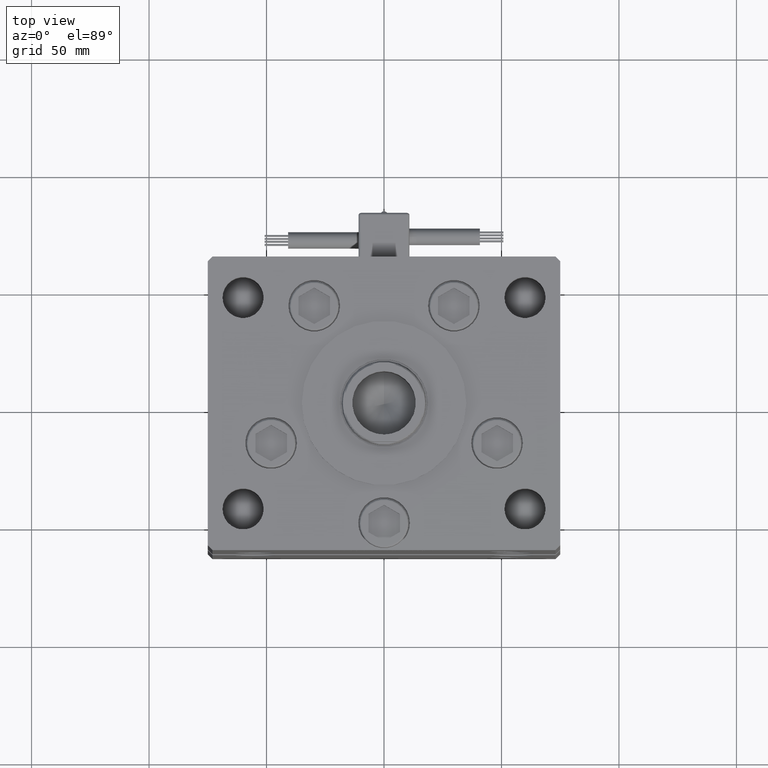
[diagram: clean part render]
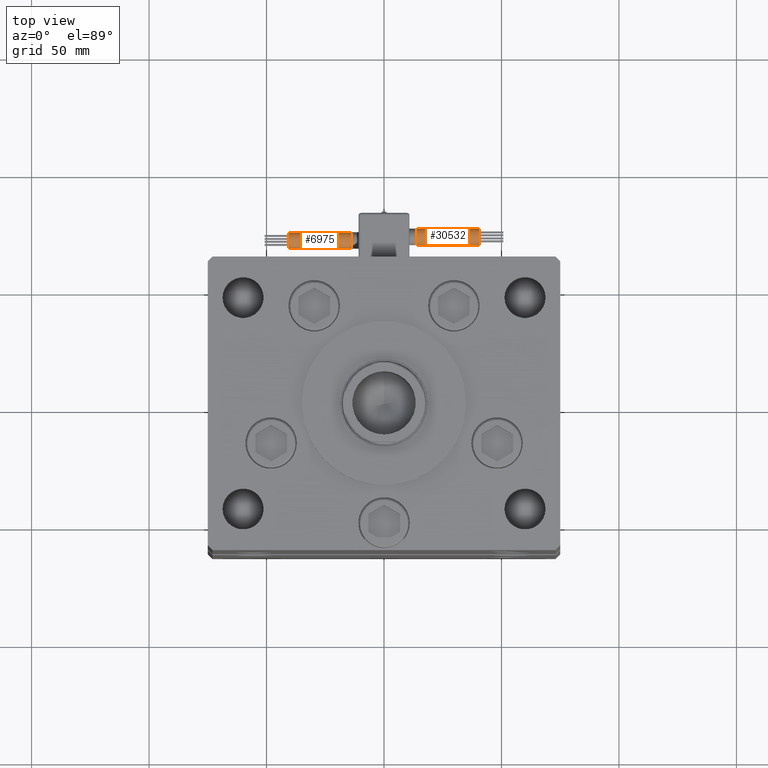
[diagram: same view with one multi-face feature highlighted, each face labeled with its STEP entity id]
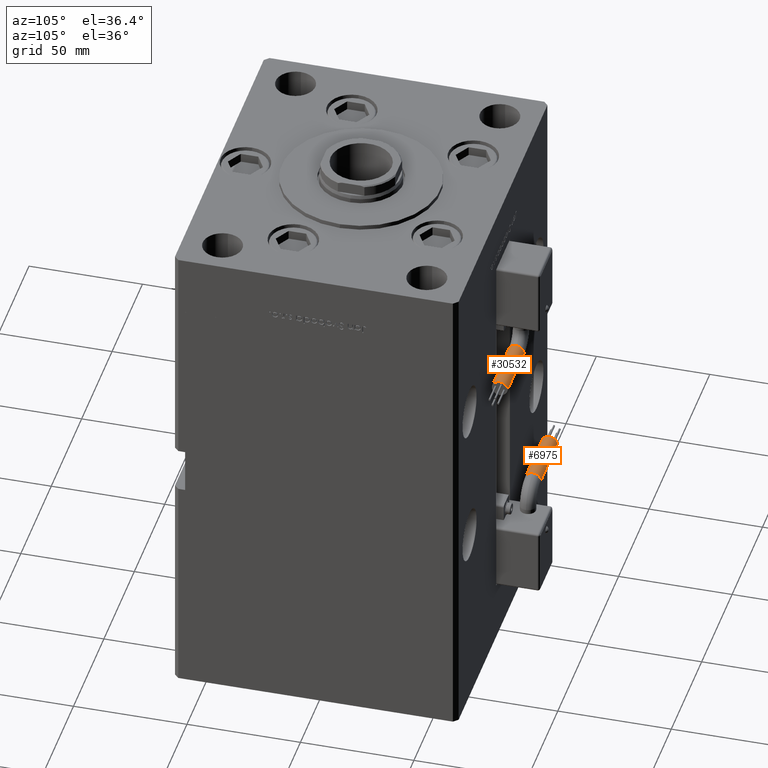
[diagram: same view with one multi-face feature highlighted, each face labeled with its STEP entity id]
A machine part, top view. The highlighted faces form ONE feature: a constant-radius fillet chain: 2 tangent blend faces with common blend radius 3.5 mm. The faces share edges in the B-rep.
A second angle (auxiliary view) of the same feature is appended — it is thin or edge-on in the first view.
Their STEP definitions:
[1] entity #30532 (Cylinder):
#129 = LINE ( 'NONE', #20750, #42789 ) ;
#245 = EDGE_CURVE ( 'NONE', #30172, #48373, #44445, .T. ) ;
#474 = CIRCLE ( 'NONE', #24805, 3.500000000000003109 ) ;
#1185 = CARTESIAN_POINT ( 'NONE',  ( 13.79999999999999893, 42.00000000000000000, -65.00000000000000000 ) ) ;
#1917 = CARTESIAN_POINT ( 'NONE',  ( 40.80000000000000426, 45.50000000000000711, -65.00000000000000000 ) ) ;
#2687 = LINE ( 'NONE', #19066, #33675 ) ;
#2784 = DIRECTION ( 'NONE',  ( 1.000000000000000000, 0.000000000000000000, 2.220446049250000002E-16 ) ) ;
#3662 = AXIS2_PLACEMENT_3D ( 'NONE', #36942, #2784, #54120 ) ;
#4853 = FACE_OUTER_BOUND ( 'NONE', #22538, .T. ) ;
#5139 = DIRECTION ( 'NONE',  ( 1.000000000000000000, -2.599999999999999847E-16, 2.220446049250000002E-16 ) ) ;
#7284 = ORIENTED_EDGE ( 'NONE', *, *, #25529, .T. ) ;
#7340 = VERTEX_POINT ( 'NONE', #1917 ) ;
#7463 = CARTESIAN_POINT ( 'NONE',  ( 13.79999999999999893, 42.00000000000000000, -65.00000000000000000 ) ) ;
#9355 = CYLINDRICAL_SURFACE ( 'NONE', #35809, 3.500000000000003109 ) ;
#9510 = EDGE_CURVE ( 'NONE', #7340, #43830, #25305, .T. ) ;
#17623 = DIRECTION ( 'NONE',  ( 1.000000000000000000, -2.599999999999999847E-16, 2.220446049250000002E-16 ) ) ;
#17783 = EDGE_CURVE ( 'NONE', #32652, #7340, #2687, .T. ) ;
#19066 = CARTESIAN_POINT ( 'NONE',  ( 13.80000000000000071, 45.50000000000000711, -65.00000000000000000 ) ) ;
#20750 = CARTESIAN_POINT ( 'NONE',  ( 13.79999999999999716, 38.50000000000000000, -65.00000000000000000 ) ) ;
#22538 = EDGE_LOOP ( 'NONE', ( #51346, #7284, #52445, #55782, #28628 ) ) ;
#23590 = DIRECTION ( 'NONE',  ( 1.000000000000000000, 0.000000000000000000, 2.220446049250000002E-16 ) ) ;
#23667 = CARTESIAN_POINT ( 'NONE',  ( 40.80000000000000426, 38.50000000000000000, -65.00000000000000000 ) ) ;
#23875 = DIRECTION ( 'NONE',  ( 0.000000000000000000, 0.000000000000000000, -1.000000000000000000 ) ) ;
#24805 = AXIS2_PLACEMENT_3D ( 'NONE', #27696, #28527, #44887 ) ;
#25305 = CIRCLE ( 'NONE', #3662, 3.500000000000003109 ) ;
#25529 = EDGE_CURVE ( 'NONE', #32652, #30172, #474, .T. ) ;
#27696 = CARTESIAN_POINT ( 'NONE',  ( 13.79999999999999893, 42.00000000000000000, -65.00000000000000000 ) ) ;
#28527 = DIRECTION ( 'NONE',  ( 1.000000000000000000, 0.000000000000000000, 2.220446049250000002E-16 ) ) ;
#28628 = ORIENTED_EDGE ( 'NONE', *, *, #9510, .F. ) ;
#28645 = DIRECTION ( 'NONE',  ( 1.000000000000000000, -2.599999999999999847E-16, 2.220446049250000002E-16 ) ) ;
#30109 = AXIS2_PLACEMENT_3D ( 'NONE', #7463, #23590, #23875 ) ;
#30172 = VERTEX_POINT ( 'NONE', #31908 ) ;
#30532 = ADVANCED_FACE ( 'NONE', ( #4853 ), #9355, .T. ) ;
#31908 = CARTESIAN_POINT ( 'NONE',  ( 13.79999999999999893, 41.99999999999999289, -61.50000000000000000 ) ) ;
#32652 = VERTEX_POINT ( 'NONE', #50261 ) ;
#33675 = VECTOR ( 'NONE', #28645, 1000.000000000000000 ) ;
#35809 = AXIS2_PLACEMENT_3D ( 'NONE', #1185, #5139, #52802 ) ;
#36942 = CARTESIAN_POINT ( 'NONE',  ( 40.80000000000000426, 42.00000000000000000, -65.00000000000000000 ) ) ;
#42789 = VECTOR ( 'NONE', #17623, 1000.000000000000000 ) ;
#43830 = VERTEX_POINT ( 'NONE', #23667 ) ;
#44139 = CARTESIAN_POINT ( 'NONE',  ( 13.79999999999999893, 38.50000000000000000, -65.00000000000000000 ) ) ;
#44445 = CIRCLE ( 'NONE', #30109, 3.500000000000003109 ) ;
#44887 = DIRECTION ( 'NONE',  ( 0.000000000000000000, 0.000000000000000000, -1.000000000000000000 ) ) ;
#46081 = EDGE_CURVE ( 'NONE', #48373, #43830, #129, .T. ) ;
#48373 = VERTEX_POINT ( 'NONE', #44139 ) ;
#50261 = CARTESIAN_POINT ( 'NONE',  ( 13.79999999999999893, 45.50000000000000711, -65.00000000000000000 ) ) ;
#51346 = ORIENTED_EDGE ( 'NONE', *, *, #17783, .F. ) ;
#52445 = ORIENTED_EDGE ( 'NONE', *, *, #245, .T. ) ;
#52802 = DIRECTION ( 'NONE',  ( -4.956352788505158337E-16, -1.000000000000000000, 0.000000000000000000 ) ) ;
#54120 = DIRECTION ( 'NONE',  ( 0.000000000000000000, 0.000000000000000000, -1.000000000000000000 ) ) ;
#55782 = ORIENTED_EDGE ( 'NONE', *, *, #46081, .T. ) ;
[2] entity #6975 (Cylinder):
#94 = ORIENTED_EDGE ( 'NONE', *, *, #17783, .T. ) ;
#129 = LINE ( 'NONE', #20750, #42789 ) ;
#1433 = ORIENTED_EDGE ( 'NONE', *, *, #9390, .F. ) ;
#1917 = CARTESIAN_POINT ( 'NONE',  ( 40.80000000000000426, 45.50000000000000711, -65.00000000000000000 ) ) ;
#2687 = LINE ( 'NONE', #19066, #33675 ) ;
#4283 = CIRCLE ( 'NONE', #23220, 3.500000000000003109 ) ;
#4509 = DIRECTION ( 'NONE',  ( 0.000000000000000000, 0.000000000000000000, -1.000000000000000000 ) ) ;
#4764 = CARTESIAN_POINT ( 'NONE',  ( 13.79999999999999893, 42.00000000000000000, -65.00000000000000000 ) ) ;
#5325 = DIRECTION ( 'NONE',  ( 1.000000000000000000, 0.000000000000000000, 2.220446049250000002E-16 ) ) ;
#6975 = ADVANCED_FACE ( 'NONE', ( #33408 ), #50599, .T. ) ;
#7340 = VERTEX_POINT ( 'NONE', #1917 ) ;
#7721 = DIRECTION ( 'NONE',  ( -4.956352788505158337E-16, -1.000000000000000000, 0.000000000000000000 ) ) ;
#8176 = CARTESIAN_POINT ( 'NONE',  ( 13.79999999999999893, 42.00000000000000000, -65.00000000000000000 ) ) ;
#9309 = CIRCLE ( 'NONE', #48983, 3.500000000000003109 ) ;
#9390 = EDGE_CURVE ( 'NONE', #43830, #7340, #26299, .T. ) ;
#11947 = CARTESIAN_POINT ( 'NONE',  ( 13.79999999999999893, 42.00000000000000000, -65.00000000000000000 ) ) ;
#17623 = DIRECTION ( 'NONE',  ( 1.000000000000000000, -2.599999999999999847E-16, 2.220446049250000002E-16 ) ) ;
#17783 = EDGE_CURVE ( 'NONE', #32652, #7340, #2687, .T. ) ;
#17867 = VERTEX_POINT ( 'NONE', #49788 ) ;
#18977 = ORIENTED_EDGE ( 'NONE', *, *, #46081, .F. ) ;
#19066 = CARTESIAN_POINT ( 'NONE',  ( 13.80000000000000071, 45.50000000000000711, -65.00000000000000000 ) ) ;
#20750 = CARTESIAN_POINT ( 'NONE',  ( 13.79999999999999716, 38.50000000000000000, -65.00000000000000000 ) ) ;
#23101 = DIRECTION ( 'NONE',  ( 0.000000000000000000, 0.000000000000000000, -1.000000000000000000 ) ) ;
#23220 = AXIS2_PLACEMENT_3D ( 'NONE', #4764, #5325, #23101 ) ;
#23667 = CARTESIAN_POINT ( 'NONE',  ( 40.80000000000000426, 38.50000000000000000, -65.00000000000000000 ) ) ;
#26299 = CIRCLE ( 'NONE', #27996, 3.500000000000003109 ) ;
#27996 = AXIS2_PLACEMENT_3D ( 'NONE', #35832, #48501, #53284 ) ;
#28645 = DIRECTION ( 'NONE',  ( 1.000000000000000000, -2.599999999999999847E-16, 2.220446049250000002E-16 ) ) ;
#32652 = VERTEX_POINT ( 'NONE', #50261 ) ;
#33408 = FACE_OUTER_BOUND ( 'NONE', #34442, .T. ) ;
#33675 = VECTOR ( 'NONE', #28645, 1000.000000000000000 ) ;
#34435 = DIRECTION ( 'NONE',  ( 1.000000000000000000, 0.000000000000000000, 2.220446049250000002E-16 ) ) ;
#34442 = EDGE_LOOP ( 'NONE', ( #52723, #41637, #94, #1433, #18977 ) ) ;
#35832 = CARTESIAN_POINT ( 'NONE',  ( 40.80000000000000426, 42.00000000000000000, -65.00000000000000000 ) ) ;
#38603 = EDGE_CURVE ( 'NONE', #17867, #32652, #9309, .T. ) ;
#41637 = ORIENTED_EDGE ( 'NONE', *, *, #38603, .T. ) ;
#42789 = VECTOR ( 'NONE', #17623, 1000.000000000000000 ) ;
#43830 = VERTEX_POINT ( 'NONE', #23667 ) ;
#44139 = CARTESIAN_POINT ( 'NONE',  ( 13.79999999999999893, 38.50000000000000000, -65.00000000000000000 ) ) ;
#45138 = AXIS2_PLACEMENT_3D ( 'NONE', #11947, #46370, #7721 ) ;
#46081 = EDGE_CURVE ( 'NONE', #48373, #43830, #129, .T. ) ;
#46370 = DIRECTION ( 'NONE',  ( 1.000000000000000000, -2.599999999999999847E-16, 2.220446049250000002E-16 ) ) ;
#48373 = VERTEX_POINT ( 'NONE', #44139 ) ;
#48501 = DIRECTION ( 'NONE',  ( 1.000000000000000000, 0.000000000000000000, 2.220446049250000002E-16 ) ) ;
#48983 = AXIS2_PLACEMENT_3D ( 'NONE', #8176, #34435, #4509 ) ;
#49788 = CARTESIAN_POINT ( 'NONE',  ( 13.79999999999999893, 42.00000000000000000, -68.50000000000000000 ) ) ;
#50261 = CARTESIAN_POINT ( 'NONE',  ( 13.79999999999999893, 45.50000000000000711, -65.00000000000000000 ) ) ;
#50599 = CYLINDRICAL_SURFACE ( 'NONE', #45138, 3.500000000000003109 ) ;
#52714 = EDGE_CURVE ( 'NONE', #48373, #17867, #4283, .T. ) ;
#52723 = ORIENTED_EDGE ( 'NONE', *, *, #52714, .T. ) ;
#53284 = DIRECTION ( 'NONE',  ( 0.000000000000000000, 0.000000000000000000, -1.000000000000000000 ) ) ;